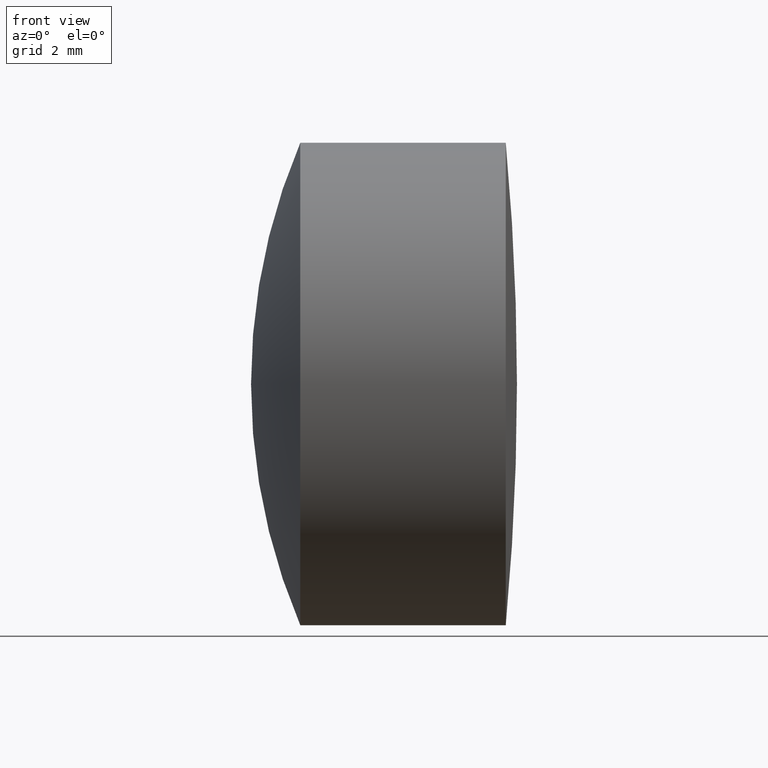
[diagram: clean part render]
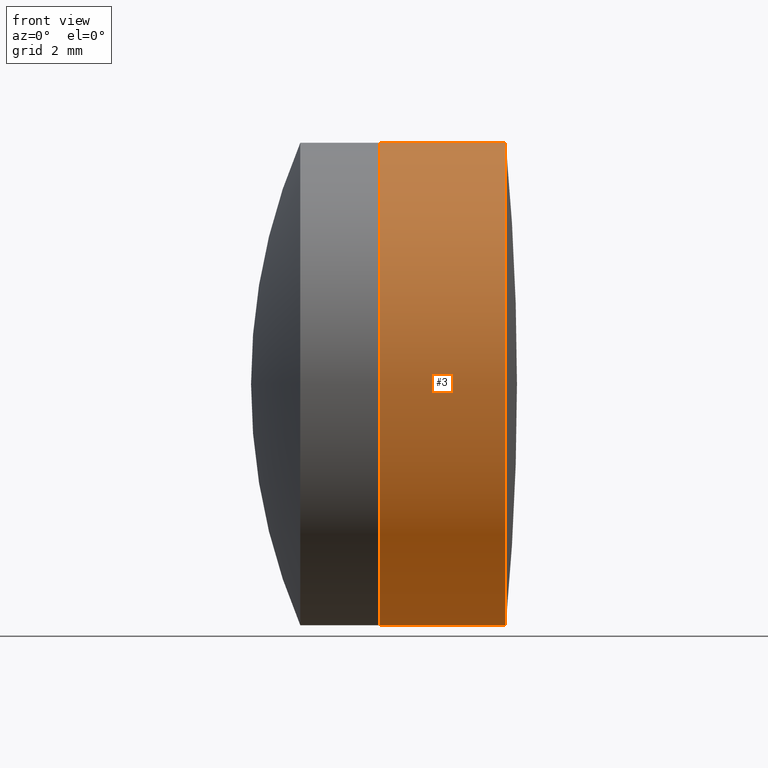
[diagram: same view with one face highlighted and labeled with its STEP entity id]
A machine part, front view. The second image highlights one B-rep face of the part: STEP entity #3.
In plain terms, the highlighted cylindrical surface (partial cylindrical patch) has radius 6.35 mm, axis along (-1, -0, -0).
Its self-contained STEP definition (entity closure, byte-faithful):
#3 = ADVANCED_FACE ( 'NONE', ( #93 ), #228, .T. ) ;
#21 = ORIENTED_EDGE ( 'NONE', *, *, #145, .F. ) ;
#24 = EDGE_LOOP ( 'NONE', ( #335, #170, #152, #21 ) ) ;
#26 = CIRCLE ( 'NONE', #276, 6.349999999999996100 ) ;
#31 = DIRECTION ( 'NONE',  ( -1.000000000000000000, -0.0000000000000000000, -0.0000000000000000000 ) ) ;
#37 = LINE ( 'NONE', #130, #73 ) ;
#39 = VERTEX_POINT ( 'NONE', #184 ) ;
#46 = AXIS2_PLACEMENT_3D ( 'NONE', #237, #243, #189 ) ;
#53 = EDGE_CURVE ( 'NONE', #122, #132, #98, .T. ) ;
#57 = CARTESIAN_POINT ( 'NONE',  ( -0.5519199926577972300, 7.776507174585686200E-016, -6.349999999999994300 ) ) ;
#66 = VERTEX_POINT ( 'NONE', #179 ) ;
#67 = CIRCLE ( 'NONE', #262, 6.349999999999993400 ) ;
#70 = DIRECTION ( 'NONE',  ( -1.000000000000000000, -0.0000000000000000000, -0.0000000000000000000 ) ) ;
#72 = DIRECTION ( 'NONE',  ( 0.0000000000000000000, 0.0000000000000000000, 1.000000000000000000 ) ) ;
#73 = VECTOR ( 'NONE', #114, 1000.000000000000000 ) ;
#82 = EDGE_CURVE ( 'NONE', #66, #39, #37, .T. ) ;
#89 = DIRECTION ( 'NONE',  ( 0.0000000000000000000, 0.0000000000000000000, 1.000000000000000000 ) ) ;
#93 = FACE_OUTER_BOUND ( 'NONE', #24, .T. ) ;
#98 = LINE ( 'NONE', #57, #287 ) ;
#114 = DIRECTION ( 'NONE',  ( -1.000000000000000000, -0.0000000000000000000, -0.0000000000000000000 ) ) ;
#122 = VERTEX_POINT ( 'NONE', #206 ) ;
#125 = DIRECTION ( 'NONE',  ( -1.000000000000000000, -0.0000000000000000000, -0.0000000000000000000 ) ) ;
#130 = CARTESIAN_POINT ( 'NONE',  ( -0.5519199926577972300, 0.0000000000000000000, 6.349999999999994300 ) ) ;
#132 = VERTEX_POINT ( 'NONE', #278 ) ;
#145 = EDGE_CURVE ( 'NONE', #132, #39, #26, .T. ) ;
#152 = ORIENTED_EDGE ( 'NONE', *, *, #82, .T. ) ;
#170 = ORIENTED_EDGE ( 'NONE', *, *, #234, .T. ) ;
#179 = CARTESIAN_POINT ( 'NONE',  ( 275.7139967868120000, 0.0000000000000000000, 6.349999999999993400 ) ) ;
#184 = CARTESIAN_POINT ( 'NONE',  ( 272.3951664723072100, 0.0000000000000000000, 6.349999999999992500 ) ) ;
#189 = DIRECTION ( 'NONE',  ( 0.0000000000000000000, 0.0000000000000000000, 1.000000000000000000 ) ) ;
#206 = CARTESIAN_POINT ( 'NONE',  ( 275.7139967868120000, 7.776507174585685300E-016, -6.349999999999993400 ) ) ;
#228 = CYLINDRICAL_SURFACE ( 'NONE', #46, 6.349999999999994300 ) ;
#232 = CARTESIAN_POINT ( 'NONE',  ( 275.7139967868120000, 0.0000000000000000000, 0.0000000000000000000 ) ) ;
#234 = EDGE_CURVE ( 'NONE', #122, #66, #67, .T. ) ;
#237 = CARTESIAN_POINT ( 'NONE',  ( -0.5519199926577972300, 0.0000000000000000000, 0.0000000000000000000 ) ) ;
#238 = CARTESIAN_POINT ( 'NONE',  ( 272.3951664723072100, 0.0000000000000000000, 0.0000000000000000000 ) ) ;
#243 = DIRECTION ( 'NONE',  ( -1.000000000000000000, -0.0000000000000000000, -0.0000000000000000000 ) ) ;
#262 = AXIS2_PLACEMENT_3D ( 'NONE', #232, #31, #89 ) ;
#276 = AXIS2_PLACEMENT_3D ( 'NONE', #238, #125, #72 ) ;
#278 = CARTESIAN_POINT ( 'NONE',  ( 272.3951664723072100, 7.776507174585683300E-016, -6.349999999999996100 ) ) ;
#287 = VECTOR ( 'NONE', #70, 1000.000000000000000 ) ;
#335 = ORIENTED_EDGE ( 'NONE', *, *, #53, .F. ) ;